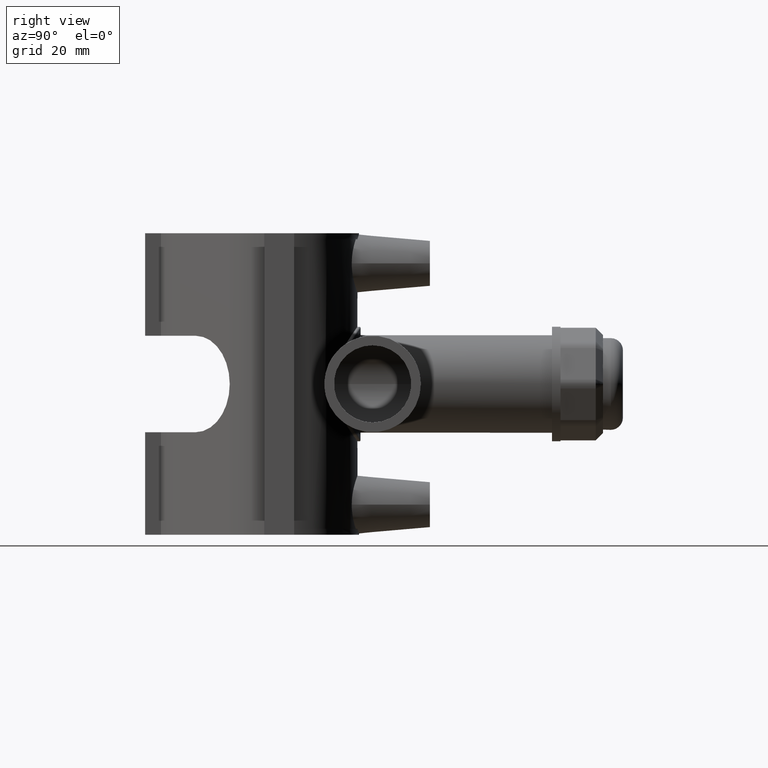
[diagram: clean part render]
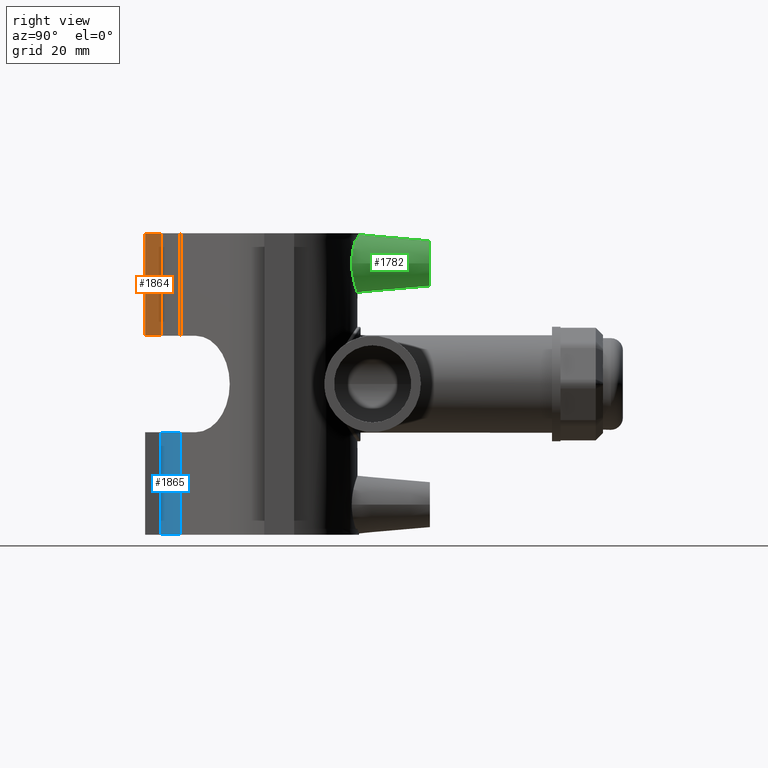
[diagram: same view with three faces highlighted in distinct colors, each labeled with its STEP entity id]
A machine part, right view with three faces highlighted in distinct colors.
Their STEP definitions:

[orange] entity #1864 — the highlighted planar face has unit normal (1, 0, 0).
#301=FACE_OUTER_BOUND('',#435,.T.);
#435=EDGE_LOOP('',(#1630,#1631,#1632,#1633));
#544=LINE('',#3587,#689);
#565=LINE('',#3647,#710);
#575=LINE('',#3667,#720);
#576=LINE('',#3668,#721);
#689=VECTOR('',#2497,5.25780904129159);
#710=VECTOR('',#2554,34.);
#720=VECTOR('',#2572,34.);
#721=VECTOR('',#2573,5.25780904129159);
#873=VERTEX_POINT('',#3584);
#874=VERTEX_POINT('',#3586);
#895=VERTEX_POINT('',#3646);
#901=VERTEX_POINT('',#3666);
#1112=EDGE_CURVE('',#874,#873,#544,.T.);
#1142=EDGE_CURVE('',#895,#874,#565,.T.);
#1152=EDGE_CURVE('',#901,#873,#575,.T.);
#1153=EDGE_CURVE('',#895,#901,#576,.T.);
#1630=ORIENTED_EDGE('',*,*,#1112,.T.);
#1631=ORIENTED_EDGE('',*,*,#1152,.F.);
#1632=ORIENTED_EDGE('',*,*,#1153,.F.);
#1633=ORIENTED_EDGE('',*,*,#1142,.T.);
#1757=PLANE('',#2060);
#1864=ADVANCED_FACE('',(#301),#1757,.T.);
#2060=AXIS2_PLACEMENT_3D('',#3665,#2570,#2571);
#2497=DIRECTION('',(-8.44627878955777E-16,1.,-1.47196167826824E-16));
#2554=DIRECTION('',(0.,0.,-1.));
#2570=DIRECTION('center_axis',(1.,8.44627878955777E-16,0.));
#2571=DIRECTION('ref_axis',(8.88178419700125E-16,-1.,0.));
#2572=DIRECTION('',(0.,0.,-1.));
#2573=DIRECTION('',(-8.44627878955777E-16,1.,0.));
#3584=CARTESIAN_POINT('',(-12.4499249998828,-39.1453518956896,16.));
#3586=CARTESIAN_POINT('',(-12.4499249998828,-44.4031609369812,16.));
#3587=CARTESIAN_POINT('',(-12.4499249998828,-55.1136422607185,16.));
#3646=CARTESIAN_POINT('',(-12.4499249998828,-44.4031609369812,50.));
#3647=CARTESIAN_POINT('',(-12.4499249998828,-44.4031609369812,50.));
#3665=CARTESIAN_POINT('Origin',(-12.4499249998828,-39.1453518956896,50.));
#3666=CARTESIAN_POINT('',(-12.4499249998828,-39.1453518956896,50.));
#3667=CARTESIAN_POINT('',(-12.4499249998828,-39.1453518956896,50.));
#3668=CARTESIAN_POINT('',(-12.4499249998828,-44.4031609369812,50.));

[blue] entity #1865 — the highlighted cylindrical surface (partial cylindrical patch) has radius 23.125 mm, axis along (0, 0, -1).
#157=CIRCLE('',#2042,23.1250457296622);
#164=CIRCLE('',#2062,23.1250457296622);
#198=CYLINDRICAL_SURFACE('',#2061,23.1250457296622);
#302=FACE_OUTER_BOUND('',#436,.T.);
#436=EDGE_LOOP('',(#1634,#1635,#1636,#1637));
#567=LINE('',#3651,#712);
#574=LINE('',#3664,#719);
#712=VECTOR('',#2558,34.);
#719=VECTOR('',#2569,34.);
#882=VERTEX_POINT('',#3603);
#883=VERTEX_POINT('',#3605);
#896=VERTEX_POINT('',#3650);
#900=VERTEX_POINT('',#3662);
#1121=EDGE_CURVE('',#883,#882,#157,.T.);
#1144=EDGE_CURVE('',#883,#896,#567,.T.);
#1151=EDGE_CURVE('',#882,#900,#574,.T.);
#1154=EDGE_CURVE('',#896,#900,#164,.T.);
#1634=ORIENTED_EDGE('',*,*,#1121,.T.);
#1635=ORIENTED_EDGE('',*,*,#1151,.T.);
#1636=ORIENTED_EDGE('',*,*,#1154,.F.);
#1637=ORIENTED_EDGE('',*,*,#1144,.F.);
#1865=ADVANCED_FACE('',(#302),#198,.T.);
#2042=AXIS2_PLACEMENT_3D('',#3606,#2510,#2511);
#2061=AXIS2_PLACEMENT_3D('',#3669,#2574,#2575);
#2062=AXIS2_PLACEMENT_3D('',#3670,#2576,#2577);
#2510=DIRECTION('center_axis',(-6.8691545148979E-16,-6.86915449858513E-16,
-1.));
#2511=DIRECTION('ref_axis',(-0.0453209175537758,-0.998972479316665,0.));
#2558=DIRECTION('',(0.,0.,-1.));
#2569=DIRECTION('',(0.,0.,-1.));
#2574=DIRECTION('center_axis',(0.,0.,-1.));
#2575=DIRECTION('ref_axis',(-0.0453209175537758,-0.998972479316665,0.));
#2576=DIRECTION('center_axis',(0.,0.,-1.));
#2577=DIRECTION('ref_axis',(-0.0453209175537758,-0.998972479316665,0.));
#3603=CARTESIAN_POINT('',(-12.4499249998828,-39.1453518956896,-16.));
#3605=CARTESIAN_POINT('',(-7.76644282218797E-8,-32.7037533402186,-16.));
#3606=CARTESIAN_POINT('Origin',(-16.3518767089415,-16.3518766701093,-16.));
#3650=CARTESIAN_POINT('',(-7.76644282218797E-8,-32.7037533402186,-50.));
#3651=CARTESIAN_POINT('',(-7.76644282218797E-8,-32.7037533402186,50.));
#3662=CARTESIAN_POINT('',(-12.4499249998828,-39.1453518956896,-50.));
#3664=CARTESIAN_POINT('',(-12.4499249998828,-39.1453518956896,50.));
#3669=CARTESIAN_POINT('Origin',(-16.3518767089415,-16.3518766701093,50.));
#3670=CARTESIAN_POINT('Origin',(-16.3518767089415,-16.3518766701093,-50.));

[green] entity #1782 — the highlighted conical surface has half-angle 5 deg.
#27=(
BOUNDED_CURVE()
B_SPLINE_CURVE(2,(#2753,#2754,#2755),.UNSPECIFIED.,.F.,.F.)
B_SPLINE_CURVE_WITH_KNOTS((3,3),(0.133736892367414,0.189943766145763),
 .UNSPECIFIED.)
CURVE()
GEOMETRIC_REPRESENTATION_ITEM()
RATIONAL_B_SPLINE_CURVE((1.00009556013023,1.00009167201305,1.00006763645424))
REPRESENTATION_ITEM('')
);
#28=(
BOUNDED_CURVE()
B_SPLINE_CURVE(2,(#2768,#2769,#2770),.UNSPECIFIED.,.F.,.F.)
B_SPLINE_CURVE_WITH_KNOTS((3,3),(0.0558360570482737,0.112042930826622),
 .UNSPECIFIED.)
CURVE()
GEOMETRIC_REPRESENTATION_ITEM()
RATIONAL_B_SPLINE_CURVE((1.00006763645424,1.00009167201305,1.00009556013023))
REPRESENTATION_ITEM('')
);
#31=CONICAL_SURFACE('',#1910,7.5,5.);
#51=FACE_BOUND('',#340,.T.);
#66=B_SPLINE_CURVE_WITH_KNOTS('',3,(#2757,#2758,#2759,#2760,#2761,#2762,
#2763,#2764,#2765,#2766),.UNSPECIFIED.,.F.,.F.,(4,2,2,2,4),(3.86154772595049,
4.03463958852525,4.40043196614832,4.76622434377139,4.93931620634615),
 .UNSPECIFIED.);
#67=B_SPLINE_CURVE_WITH_KNOTS('',3,(#2772,#2773,#2774,#2775,#2776,#2777,
#2778,#2779),.UNSPECIFIED.,.F.,.F.,(4,2,2,4),(2.94996046614777,3.31966211596086,
3.68936376577394,3.87630209367673),.UNSPECIFIED.);
#68=B_SPLINE_CURVE_WITH_KNOTS('',3,(#2780,#2781,#2782,#2783,#2784,#2785,
#2786,#2787,#2788,#2789,#2790,#2791,#2792,#2793,#2794,#2795,#2796,#2797,
#2798,#2799,#2800,#2801,#2802,#2803,#2804),.UNSPECIFIED.,.F.,.F.,(4,2,2,
3,2,2,2,2,2,2,2,4),(4.97357930476659,5.16051763266937,5.53021928248246,
5.89992093229554,6.26962258210863,6.63932423192171,7.00711269864557,7.37490116536943,
7.74268963209329,8.11047809881715,8.48017974863023,8.84988139844332),
 .UNSPECIFIED.);
#98=CIRCLE('',#1901,7.5);
#219=FACE_OUTER_BOUND('',#339,.T.);
#339=EDGE_LOOP('',(#1230,#1231,#1232,#1233,#1234));
#340=EDGE_LOOP('',(#1235));
#759=VERTEX_POINT('',#2736);
#764=VERTEX_POINT('',#2751);
#765=VERTEX_POINT('',#2752);
#766=VERTEX_POINT('',#2756);
#767=VERTEX_POINT('',#2767);
#768=VERTEX_POINT('',#2771);
#941=EDGE_CURVE('',#759,#759,#98,.T.);
#946=EDGE_CURVE('',#764,#765,#27,.T.);
#947=EDGE_CURVE('',#765,#766,#66,.T.);
#948=EDGE_CURVE('',#766,#767,#28,.T.);
#949=EDGE_CURVE('',#768,#767,#67,.T.);
#950=EDGE_CURVE('',#764,#768,#68,.T.);
#1230=ORIENTED_EDGE('',*,*,#946,.T.);
#1231=ORIENTED_EDGE('',*,*,#947,.T.);
#1232=ORIENTED_EDGE('',*,*,#948,.T.);
#1233=ORIENTED_EDGE('',*,*,#949,.F.);
#1234=ORIENTED_EDGE('',*,*,#950,.F.);
#1235=ORIENTED_EDGE('',*,*,#941,.F.);
#1782=ADVANCED_FACE('',(#219,#51),#31,.T.);
#1901=AXIS2_PLACEMENT_3D('',#2737,#2142,#2143);
#1910=AXIS2_PLACEMENT_3D('',#2750,#2160,#2161);
#2142=DIRECTION('center_axis',(0.,1.,0.));
#2143=DIRECTION('ref_axis',(1.,0.,0.));
#2160=DIRECTION('center_axis',(0.,-1.,0.));
#2161=DIRECTION('ref_axis',(1.,0.,0.));
#2736=CARTESIAN_POINT('',(-7.5,50.,40.));
#2737=CARTESIAN_POINT('Origin',(0.,50.,40.));
#2750=CARTESIAN_POINT('Origin',(0.,50.,40.));
#2751=CARTESIAN_POINT('',(-5.3951674336109,25.4340749460896,48.));
#2752=CARTESIAN_POINT('',(-5.30876387516254,25.9832143145872,48.));
#2753=CARTESIAN_POINT('Ctrl Pts',(-5.3951674336109,25.4340749460896,48.));
#2754=CARTESIAN_POINT('Ctrl Pts',(-5.3518578353578,25.7108609933817,48.));
#2755=CARTESIAN_POINT('Ctrl Pts',(-5.30876387516254,25.9832143145872,48.));
#2756=CARTESIAN_POINT('',(5.30876387516254,25.9832143145872,48.));
#2757=CARTESIAN_POINT('Ctrl Pts',(-5.30876387516254,25.9832143145872,48.));
#2758=CARTESIAN_POINT('Ctrl Pts',(-4.80614466395267,26.0859070253168,48.3227531575944));
#2759=CARTESIAN_POINT('Ctrl Pts',(-4.26604609183942,26.1807941840248,48.6035301130302));
#2760=CARTESIAN_POINT('Ctrl Pts',(-2.51473217360753,26.427785365591,49.3144846289839));
#2761=CARTESIAN_POINT('Ctrl Pts',(-1.21930792541024,26.52,49.5542338195887));
#2762=CARTESIAN_POINT('Ctrl Pts',(1.21930792541023,26.52,49.5542338195887));
#2763=CARTESIAN_POINT('Ctrl Pts',(2.51473217360752,26.427785365591,49.3144846289839));
#2764=CARTESIAN_POINT('Ctrl Pts',(4.26604609183941,26.1807941840248,48.6035301130302));
#2765=CARTESIAN_POINT('Ctrl Pts',(4.80614466395267,26.0859070253168,48.3227531575944));
#2766=CARTESIAN_POINT('Ctrl Pts',(5.30876387516253,25.9832143145872,48.));
#2767=CARTESIAN_POINT('',(5.3951674336109,25.4340749460896,48.));
#2768=CARTESIAN_POINT('Ctrl Pts',(5.30876387516254,25.9832143145872,48.));
#2769=CARTESIAN_POINT('Ctrl Pts',(5.35185783535865,25.7108609933762,48.));
#2770=CARTESIAN_POINT('Ctrl Pts',(5.3951674336109,25.4340749460896,48.));
#2771=CARTESIAN_POINT('',(9.76630249195255,24.096043983104,40.));
#2772=CARTESIAN_POINT('Ctrl Pts',(9.76630249195255,24.096043983104,40.));
#2773=CARTESIAN_POINT('Ctrl Pts',(9.76630249195255,24.096043983104,41.2323388327103));
#2774=CARTESIAN_POINT('Ctrl Pts',(9.50996216014971,24.2044189053942,42.5340450094426));
#2775=CARTESIAN_POINT('Ctrl Pts',(8.49387395753575,24.5794092044208,44.9067073127729));
#2776=CARTESIAN_POINT('Ctrl Pts',(7.73484343137409,24.8390807172828,45.9790627512517));
#2777=CARTESIAN_POINT('Ctrl Pts',(6.42972331783999,25.1965310724773,47.2485693515817));
#2778=CARTESIAN_POINT('Ctrl Pts',(5.93451184178679,25.3196672708485,47.6483411838531));
#2779=CARTESIAN_POINT('Ctrl Pts',(5.3951674336109,25.4340749460896,48.));
#2780=CARTESIAN_POINT('Ctrl Pts',(-5.3951674336109,25.4340749460896,48.));
#2781=CARTESIAN_POINT('Ctrl Pts',(-5.93451184178679,25.3196672708485,47.6483411838531));
#2782=CARTESIAN_POINT('Ctrl Pts',(-6.42972331783999,25.1965310724773,47.2485693515817));
#2783=CARTESIAN_POINT('Ctrl Pts',(-7.73484343137409,24.8390807172828,45.9790627512517));
#2784=CARTESIAN_POINT('Ctrl Pts',(-8.49387395753575,24.5794092044208,44.9067073127729));
#2785=CARTESIAN_POINT('Ctrl Pts',(-9.50996216014971,24.2044189053942,42.5340450094426));
#2786=CARTESIAN_POINT('Ctrl Pts',(-9.76630249195255,24.096043983104,41.2323388327103));
#2787=CARTESIAN_POINT('Ctrl Pts',(-9.76630249195255,24.096043983104,40.));
#2788=CARTESIAN_POINT('Ctrl Pts',(-9.76630249195255,24.096043983104,38.7676611672897));
#2789=CARTESIAN_POINT('Ctrl Pts',(-9.50996216014971,24.2044189053943,37.4659549905574));
#2790=CARTESIAN_POINT('Ctrl Pts',(-8.49387395753574,24.5794092044208,35.0932926872271));
#2791=CARTESIAN_POINT('Ctrl Pts',(-7.73484343137409,24.8390807172828,34.0209372487483));
#2792=CARTESIAN_POINT('Ctrl Pts',(-6.00569492756996,25.3126652865951,32.3389729484772));
#2793=CARTESIAN_POINT('Ctrl Pts',(-4.91758131382388,25.5592379122145,31.6109466468528));
#2794=CARTESIAN_POINT('Ctrl Pts',(-2.528128502029,25.9049380292898,30.6412987795354));
#2795=CARTESIAN_POINT('Ctrl Pts',(-1.22596155574619,26.,30.4002720753778));
#2796=CARTESIAN_POINT('Ctrl Pts',(1.22596155574619,26.,30.4002720753778));
#2797=CARTESIAN_POINT('Ctrl Pts',(2.528128502029,25.9049380292898,30.6412987795354));
#2798=CARTESIAN_POINT('Ctrl Pts',(4.91758131382388,25.5592379122145,31.6109466468528));
#2799=CARTESIAN_POINT('Ctrl Pts',(6.00569492756995,25.3126652865951,32.3389729484772));
#2800=CARTESIAN_POINT('Ctrl Pts',(7.73484343137408,24.8390807172828,34.0209372487483));
#2801=CARTESIAN_POINT('Ctrl Pts',(8.49387395753574,24.5794092044208,35.0932926872271));
#2802=CARTESIAN_POINT('Ctrl Pts',(9.50996216014971,24.2044189053942,37.4659549905574));
#2803=CARTESIAN_POINT('Ctrl Pts',(9.76630249195255,24.096043983104,38.7676611672897));
#2804=CARTESIAN_POINT('Ctrl Pts',(9.76630249195255,24.096043983104,40.));